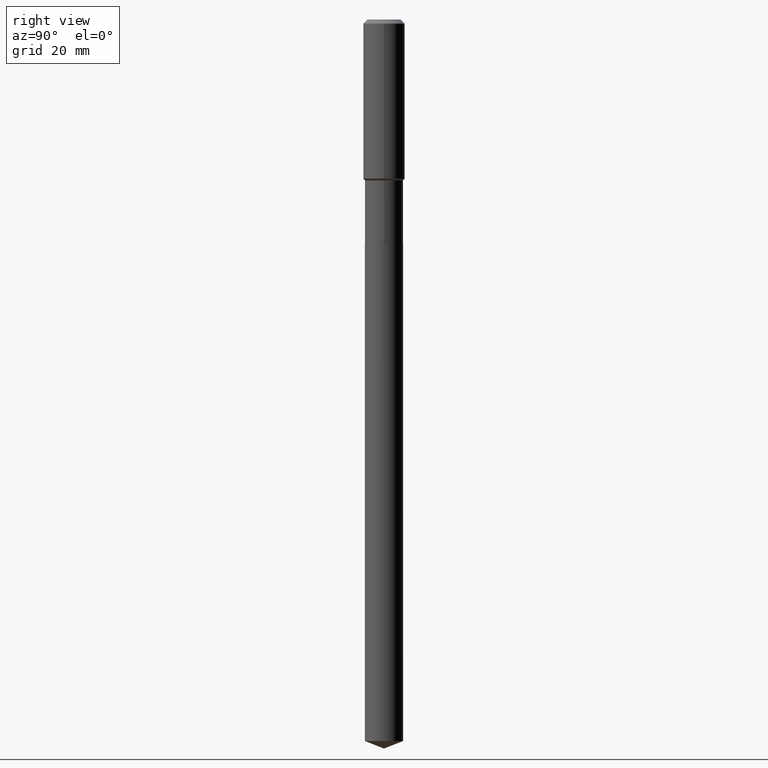
[diagram: clean part render]
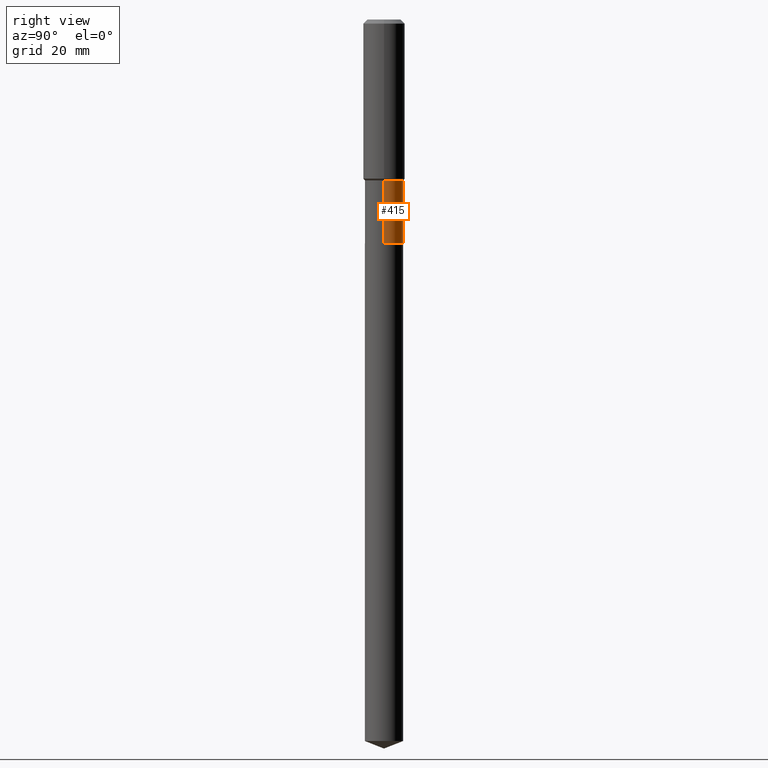
[diagram: same view with one face highlighted and labeled with its STEP entity id]
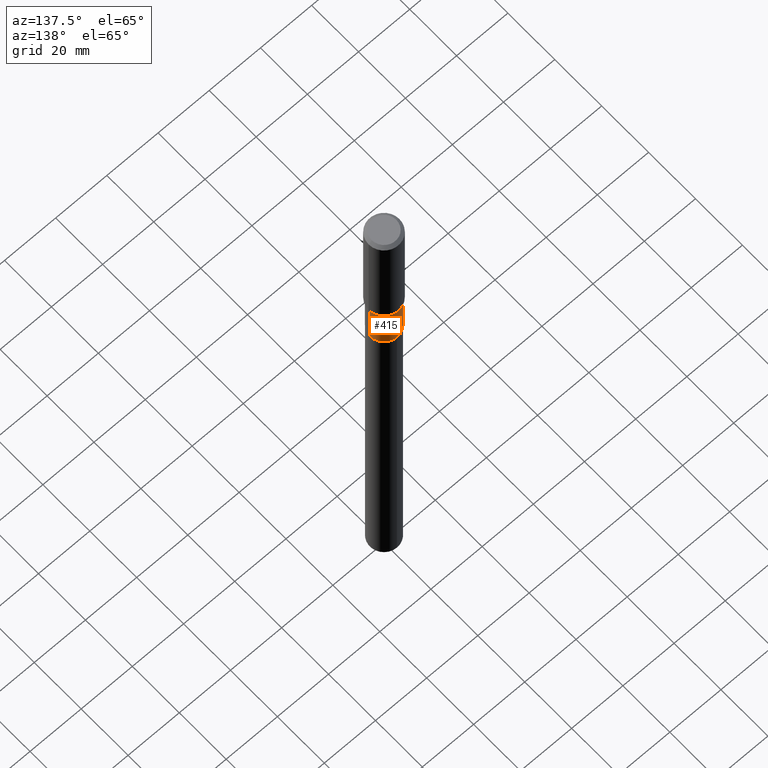
[diagram: same view with one face highlighted and labeled with its STEP entity id]
A machine part, right view. The second image highlights one B-rep face of the part: STEP entity #415.
A second angle (auxiliary view) of the same face is appended — the face is thin or edge-on in the first view.
In plain terms, the highlighted cylindrical surface (edge-blend (fillet) strip) has radius 5.5004 mm, axis along (-0, 0, 1).
Its self-contained STEP definition (entity closure, byte-faithful):
#7 = EDGE_CURVE ( 'NONE', #210, #172, #140, .T. ) ;
#21 = ORIENTED_EDGE ( 'NONE', *, *, #240, .T. ) ;
#40 = CARTESIAN_POINT ( 'NONE',  ( 0.2165500000000000203, -1.037772998344347638E-14, -2.539200000000000124 ) ) ;
#44 = DIRECTION ( 'NONE',  ( 1.000000000000000000, -6.982962677686264344E-15, 0.000000000000000000 ) ) ;
#70 = CARTESIAN_POINT ( 'NONE',  ( 0.2165499999999999647, -1.512160567852960823E-15, 1.055936080798609895E-29 ) ) ;
#95 = ORIENTED_EDGE ( 'NONE', *, *, #160, .F. ) ;
#105 = AXIS2_PLACEMENT_3D ( 'NONE', #155, #375, #313 ) ;
#122 = AXIS2_PLACEMENT_3D ( 'NONE', #252, #472, #398 ) ;
#124 = CARTESIAN_POINT ( 'NONE',  ( -0.2165499999999999647, 1.538680294288496702E-15, -1.065195393794699783E-29 ) ) ;
#140 = LINE ( 'NONE', #70, #456 ) ;
#155 = CARTESIAN_POINT ( 'NONE',  ( 4.462980571287875634E-29, -6.371953443388742039E-15, -1.825000000000000400 ) ) ;
#160 = EDGE_CURVE ( 'NONE', #172, #482, #226, .T. ) ;
#166 = EDGE_LOOP ( 'NONE', ( #21, #246, #95, #384 ) ) ;
#172 = VERTEX_POINT ( 'NONE', #193 ) ;
#186 = LINE ( 'NONE', #124, #265 ) ;
#190 = DIRECTION ( 'NONE',  ( -2.445468806185136597E-29, 3.491481338843145583E-15, 1.000000000000000000 ) ) ;
#193 = CARTESIAN_POINT ( 'NONE',  ( 0.2165499999999999092, -7.884114011241702862E-15, -1.825000000000000400 ) ) ;
#206 = FACE_OUTER_BOUND ( 'NONE', #166, .T. ) ;
#209 = EDGE_CURVE ( 'NONE', #320, #482, #186, .T. ) ;
#210 = VERTEX_POINT ( 'NONE', #40 ) ;
#212 = DIRECTION ( 'NONE',  ( -2.445468806185136877E-29, 3.491481338843145188E-15, 1.000000000000000000 ) ) ;
#213 = CIRCLE ( 'NONE', #227, 0.2165500000000000203 ) ;
#226 = CIRCLE ( 'NONE', #105, 0.2165499999999999092 ) ;
#227 = AXIS2_PLACEMENT_3D ( 'NONE', #268, #190, #44 ) ;
#240 = EDGE_CURVE ( 'NONE', #210, #320, #213, .T. ) ;
#246 = ORIENTED_EDGE ( 'NONE', *, *, #209, .T. ) ;
#252 = CARTESIAN_POINT ( 'NONE',  ( 0.000000000000000000, 0.000000000000000000, 0.000000000000000000 ) ) ;
#265 = VECTOR ( 'NONE', #460, 39.37007874015748143 ) ;
#268 = CARTESIAN_POINT ( 'NONE',  ( 6.209534392665298518E-29, -8.865569415590515556E-15, -2.539200000000000124 ) ) ;
#284 = CYLINDRICAL_SURFACE ( 'NONE', #122, 0.2165499999999999647 ) ;
#313 = DIRECTION ( 'NONE',  ( 1.000000000000000000, -6.982962677686267499E-15, 0.000000000000000000 ) ) ;
#320 = VERTEX_POINT ( 'NONE', #383 ) ;
#351 = CARTESIAN_POINT ( 'NONE',  ( -0.2165499999999999092, -6.080081135201131701E-15, -1.825000000000000400 ) ) ;
#375 = DIRECTION ( 'NONE',  ( -2.445468806185136597E-29, 3.491481338843145583E-15, 1.000000000000000000 ) ) ;
#383 = CARTESIAN_POINT ( 'NONE',  ( -0.2165500000000000203, -6.080081135201130912E-15, -2.539200000000000124 ) ) ;
#384 = ORIENTED_EDGE ( 'NONE', *, *, #7, .F. ) ;
#398 = DIRECTION ( 'NONE',  ( 1.000000000000000000, -6.982962677686266711E-15, 4.876176775795936353E-29 ) ) ;
#415 = ADVANCED_FACE ( 'NONE', ( #206 ), #284, .T. ) ;
#456 = VECTOR ( 'NONE', #212, 39.37007874015748143 ) ;
#460 = DIRECTION ( 'NONE',  ( -2.445468806185136877E-29, 3.491481338843145188E-15, 1.000000000000000000 ) ) ;
#472 = DIRECTION ( 'NONE',  ( -2.445468806185136597E-29, 3.491481338843145583E-15, 1.000000000000000000 ) ) ;
#482 = VERTEX_POINT ( 'NONE', #351 ) ;